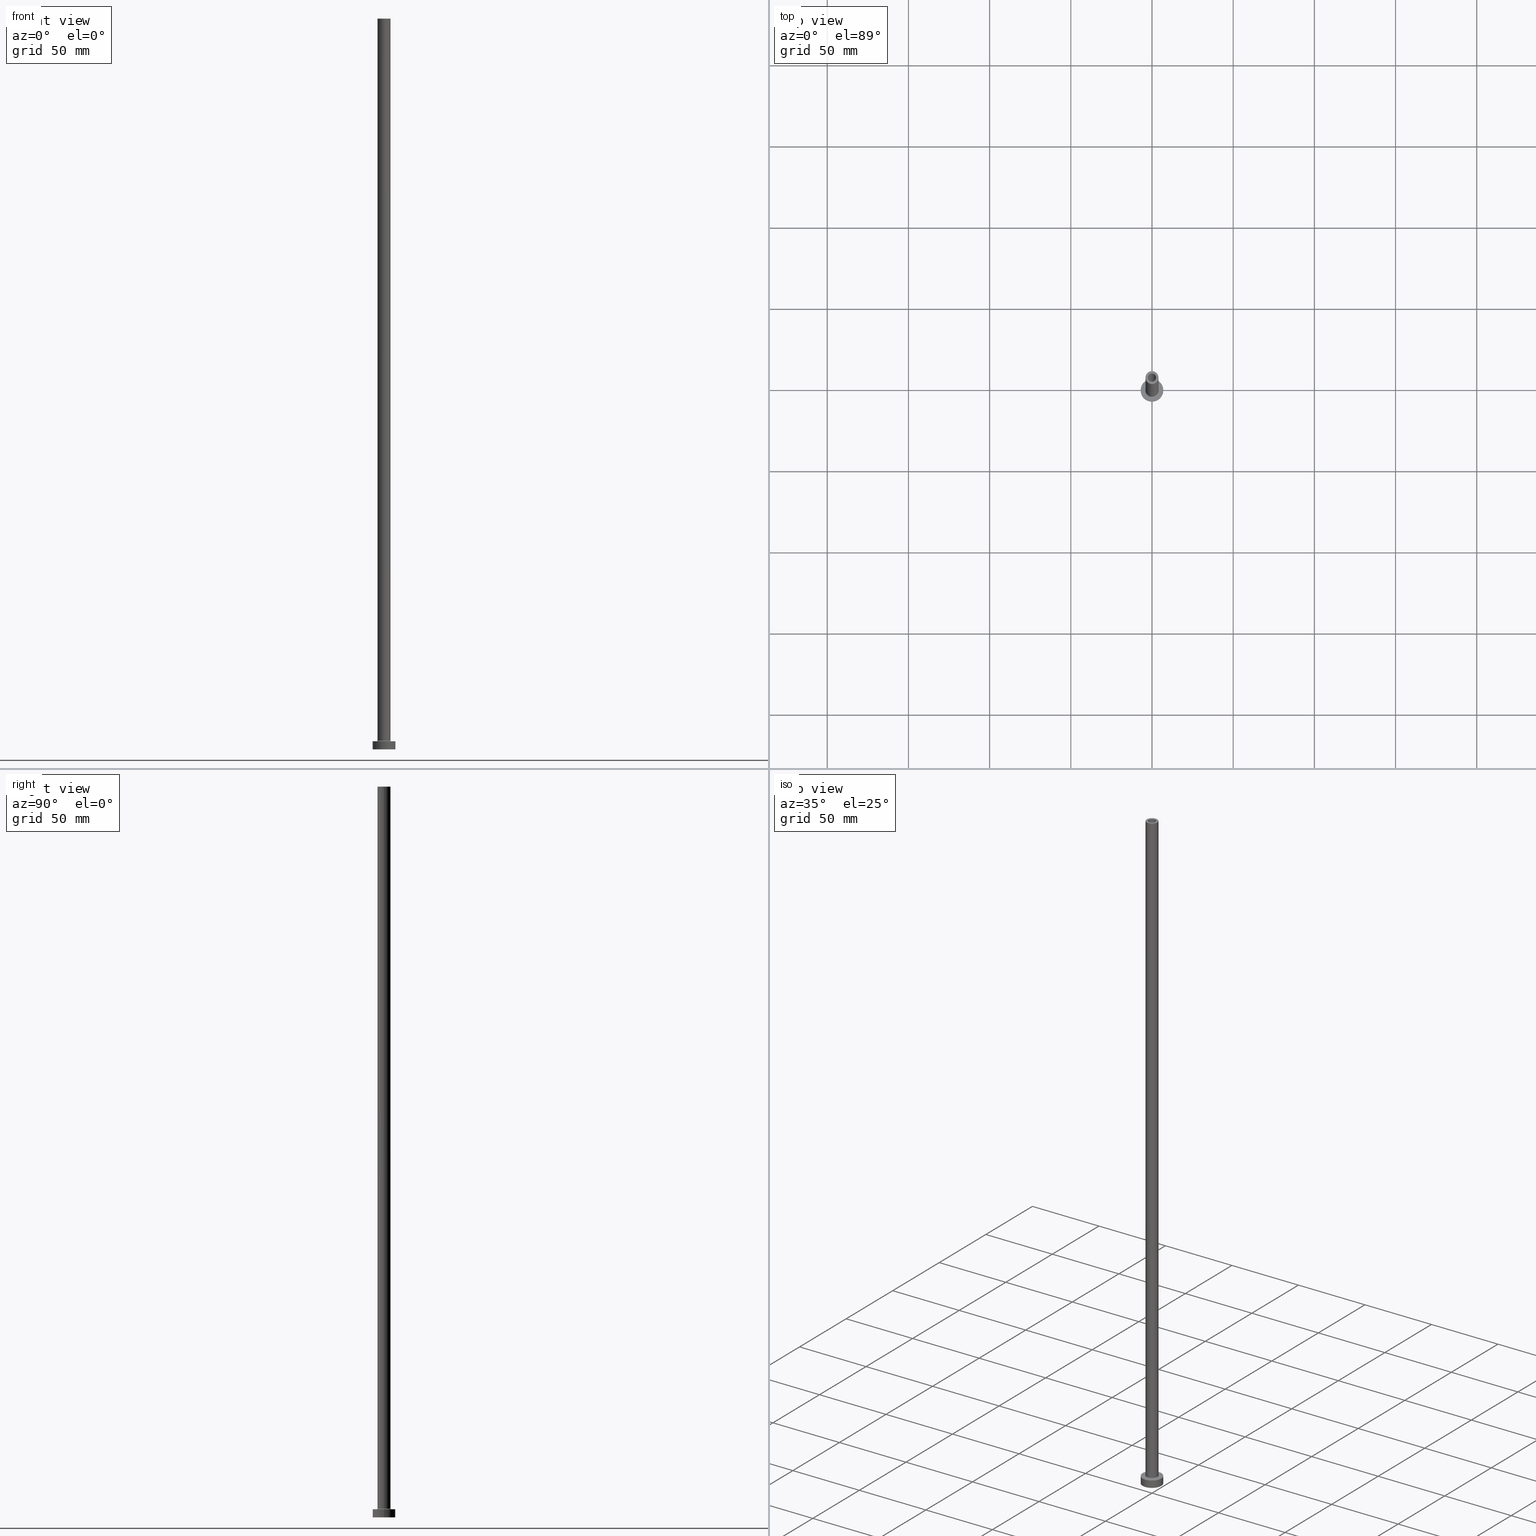
[diagram: canonical four-view strip — front | top / right | iso, engineering-drawing reading convention]
A machine part, canonical four-view strip (front | top / right | iso — engineering-drawing reading convention). The complete STEP part file that produces these views, byte-faithful:
ISO-10303-21;
HEADER;
FILE_DESCRIPTION (( 'STEP AP203' ),
    '1' );
FILE_NAME ('1b4b.STEP',
    '2023-02-13T17:09:20',
    ( '' ),
    ( '' ),
    'SwSTEP 2.0',
    'SolidWorks 2019',
    '' );
FILE_SCHEMA (( 'CONFIG_CONTROL_DESIGN' ));
ENDSEC;

DATA;
#1 = DIRECTION ( 'NONE',  ( 1.000000000000000000, 0.000000000000000000, 0.000000000000000000 ) ) ;
#2 = CIRCLE ( 'NONE', #195, 4.000000000000000000 ) ;
#3 = SECURITY_CLASSIFICATION ( '', '', #87 ) ;
#4 = APPROVAL ( #72, 'NEUR�EN�' ) ;
#5 = ORIENTED_EDGE ( 'NONE', *, *, #28, .F. ) ;
#6 = CARTESIAN_POINT ( 'NONE',  ( 0.000000000000000000, 0.000000000000000000, 450.0000000000000000 ) ) ;
#7 = ORIENTED_EDGE ( 'NONE', *, *, #192, .F. ) ;
#8 = CYLINDRICAL_SURFACE ( 'NONE', #263, 4.000000000000000000 ) ;
#9 = AXIS2_PLACEMENT_3D ( 'NONE', #368, #410, #374 ) ;
#10 = VERTEX_POINT ( 'NONE', #260 ) ;
#11 = DIRECTION ( 'NONE',  ( 0.000000000000000000, 0.000000000000000000, 1.000000000000000000 ) ) ;
#12 = EDGE_LOOP ( 'NONE', ( #43, #440, #41, #45 ) ) ;
#13 = CARTESIAN_POINT ( 'NONE',  ( 0.000000000000000000, 0.000000000000000000, 412.4953318805773961 ) ) ;
#14 = ORIENTED_EDGE ( 'NONE', *, *, #341, .T. ) ;
#15 = ORIENTED_EDGE ( 'NONE', *, *, #280, .T. ) ;
#16 = FACE_OUTER_BOUND ( 'NONE', #400, .T. ) ;
#17 = PERSON_AND_ORGANIZATION ( #135, #99 ) ;
#18 = CARTESIAN_POINT ( 'NONE',  ( 2.649999999999999911, 3.245314017740485962E-16, 0.000000000000000000 ) ) ;
#19 = DIRECTION ( 'NONE',  ( 1.000000000000000000, 0.000000000000000000, -0.000000000000000000 ) ) ;
#20 = EDGE_CURVE ( 'NONE', #362, #452, #392, .T. ) ;
#21 = DATE_AND_TIME ( #233, #158 ) ;
#22 = DIRECTION ( 'NONE',  ( 1.000000000000000000, 0.000000000000000000, 0.000000000000000000 ) ) ;
#23 = CIRCLE ( 'NONE', #166, 4.500000000000000888 ) ;
#24 = PERSON_AND_ORGANIZATION_ROLE ( 'design_supplier' ) ;
#25 = CARTESIAN_POINT ( 'NONE',  ( -2.649999999999999911, 0.000000000000000000, 412.4953318805773961 ) ) ;
#26 = AXIS2_PLACEMENT_3D ( 'NONE', #103, #384, #281 ) ;
#27 = DIRECTION ( 'NONE',  ( 1.000000000000000000, 0.000000000000000000, 0.000000000000000000 ) ) ;
#28 = EDGE_CURVE ( 'NONE', #200, #10, #23, .T. ) ;
#29 = DIRECTION ( 'NONE',  ( -1.000000000000000000, 0.000000000000000000, 0.000000000000000000 ) ) ;
#30 = PLANE ( 'NONE',  #299 ) ;
#31 = VECTOR ( 'NONE', #132, 1000.000000000000000 ) ;
#32 = CIRCLE ( 'NONE', #137, 4.000000000000000000 ) ;
#33 = DIRECTION ( 'NONE',  ( 0.000000000000000000, 0.000000000000000000, 1.000000000000000000 ) ) ;
#34 = CARTESIAN_POINT ( 'NONE',  ( -4.000000000000000000, 0.000000000000000000, 450.0000000000000000 ) ) ;
#35 = CC_DESIGN_PERSON_AND_ORGANIZATION_ASSIGNMENT ( #154, #442, ( #383 ) ) ;
#36 = FACE_OUTER_BOUND ( 'NONE', #291, .T. ) ;
#37 = CARTESIAN_POINT ( 'NONE',  ( -7.000000000000000000, 0.000000000000000000, 0.000000000000000000 ) ) ;
#38 = ORIENTED_EDGE ( 'NONE', *, *, #341, .F. ) ;
#39 = VERTEX_POINT ( 'NONE', #226 ) ;
#40 = FACE_OUTER_BOUND ( 'NONE', #224, .T. ) ;
#41 = ORIENTED_EDGE ( 'NONE', *, *, #284, .T. ) ;
#42 =( LENGTH_UNIT ( ) NAMED_UNIT ( * ) SI_UNIT ( .MILLI., .METRE. ) );
#43 = ORIENTED_EDGE ( 'NONE', *, *, #82, .F. ) ;
#44 = CIRCLE ( 'NONE', #227, 7.000000000000000000 ) ;
#45 = ORIENTED_EDGE ( 'NONE', *, *, #181, .F. ) ;
#46 = FACE_BOUND ( 'NONE', #147, .T. ) ;
#47 = DIRECTION ( 'NONE',  ( -0.000000000000000000, -0.000000000000000000, -1.000000000000000000 ) ) ;
#48 = ORIENTED_EDGE ( 'NONE', *, *, #20, .F. ) ;
#49 = CALENDAR_DATE ( 2023, 13, 2 ) ;
#50 = CARTESIAN_POINT ( 'NONE',  ( 0.000000000000000000, 0.000000000000000000, 450.0000000000000000 ) ) ;
#51 = EDGE_LOOP ( 'NONE', ( #360, #14, #425, #321 ) ) ;
#52 = DIRECTION ( 'NONE',  ( 1.000000000000000000, 0.000000000000000000, 0.000000000000000000 ) ) ;
#53 = ORIENTED_EDGE ( 'NONE', *, *, #253, .F. ) ;
#54 = DIRECTION ( 'NONE',  ( 1.000000000000000000, 0.000000000000000000, 0.000000000000000000 ) ) ;
#55 = EDGE_CURVE ( 'NONE', #146, #10, #401, .T. ) ;
#56 = DIRECTION ( 'NONE',  ( -0.000000000000000000, -0.000000000000000000, -1.000000000000000000 ) ) ;
#57 = CARTESIAN_POINT ( 'NONE',  ( 0.000000000000000000, 0.000000000000000000, 5.500000000000005329 ) ) ;
#58 = LOCAL_TIME ( 18, 9, 20.00000000000000000, #369 ) ;
#59 = CARTESIAN_POINT ( 'NONE',  ( 0.000000000000000000, 0.000000000000000000, 5.000000000000000000 ) ) ;
#60 = ADVANCED_FACE ( 'NONE', ( #122, #365 ), #326, .T. ) ;
#61 = CARTESIAN_POINT ( 'NONE',  ( 2.500000000000000000, 3.061616997868382648E-16, 450.0000000000000000 ) ) ;
#62 = DIRECTION ( 'NONE',  ( -1.000000000000000000, 0.000000000000000000, 0.000000000000000000 ) ) ;
#63 = AXIS2_PLACEMENT_3D ( 'NONE', #104, #139, #173 ) ;
#64 = DIRECTION ( 'NONE',  ( 1.000000000000000000, 0.000000000000000000, -0.000000000000000000 ) ) ;
#65 = EDGE_CURVE ( 'NONE', #318, #441, #423, .T. ) ;
#66 = CARTESIAN_POINT ( 'NONE',  ( 0.000000000000000000, 0.000000000000000000, 405.0000000000000000 ) ) ;
#67 = APPROVAL_ROLE ( '' ) ;
#68 = ORIENTED_EDGE ( 'NONE', *, *, #251, .T. ) ;
#69 = ORIENTED_EDGE ( 'NONE', *, *, #197, .T. ) ;
#70 = CIRCLE ( 'NONE', #130, 2.649999999999999911 ) ;
#71 = LOCAL_TIME ( 18, 9, 20.00000000000000000, #453 ) ;
#72 = APPROVAL_STATUS ( 'not_yet_approved' ) ;
#73 = VERTEX_POINT ( 'NONE', #448 ) ;
#74 = ORIENTED_EDGE ( 'NONE', *, *, #332, .F. ) ;
#75 = DIRECTION ( 'NONE',  ( 1.000000000000000000, 0.000000000000000000, 0.000000000000000000 ) ) ;
#76 = VERTEX_POINT ( 'NONE', #298 ) ;
#77 = ORIENTED_EDGE ( 'NONE', *, *, #322, .T. ) ;
#78 = ORIENTED_EDGE ( 'NONE', *, *, #55, .F. ) ;
#79 = FACE_OUTER_BOUND ( 'NONE', #314, .T. ) ;
#80 = VERTEX_POINT ( 'NONE', #18 ) ;
#81 = ORIENTED_EDGE ( 'NONE', *, *, #178, .T. ) ;
#82 = EDGE_CURVE ( 'NONE', #397, #39, #378, .T. ) ;
#83 = CARTESIAN_POINT ( 'NONE',  ( 0.000000000000000000, 0.000000000000000000, 5.000000000000000000 ) ) ;
#84 = CC_DESIGN_DATE_AND_TIME_ASSIGNMENT ( #162, #334, ( #3 ) ) ;
#85 = DATE_TIME_ROLE ( 'creation_date' ) ;
#86 = CARTESIAN_POINT ( 'NONE',  ( -2.649999999999999911, 0.000000000000000000, 405.0000000000000000 ) ) ;
#87 = SECURITY_CLASSIFICATION_LEVEL ( 'unclassified' ) ;
#88 = DIRECTION ( 'NONE',  ( 0.000000000000000000, 0.000000000000000000, 1.000000000000000000 ) ) ;
#89 = AXIS2_PLACEMENT_3D ( 'NONE', #296, #244, #19 ) ;
#90 = PERSON_AND_ORGANIZATION ( #135, #99 ) ;
#91 = AXIS2_PLACEMENT_3D ( 'NONE', #170, #252, #389 ) ;
#92 = CC_DESIGN_APPROVAL ( #4, ( #383 ) ) ;
#93 = DIRECTION ( 'NONE',  ( 0.000000000000000000, 0.000000000000000000, 1.000000000000000000 ) ) ;
#94 = CARTESIAN_POINT ( 'NONE',  ( 0.000000000000000000, 0.000000000000000000, 450.0000000000000000 ) ) ;
#95 = DIRECTION ( 'NONE',  ( 0.000000000000000000, 0.000000000000000000, 1.000000000000000000 ) ) ;
#96 = AXIS2_PLACEMENT_3D ( 'NONE', #259, #189, #324 ) ;
#97 = CIRCLE ( 'NONE', #338, 2.500000000000000000 ) ;
#98 = CYLINDRICAL_SURFACE ( 'NONE', #207, 2.649999999999999911 ) ;
#99 = ORGANIZATION ( 'NEUR�EN�', 'NEUR�EN�', '' ) ;
#100 = CC_DESIGN_PERSON_AND_ORGANIZATION_ASSIGNMENT ( #367, #159, ( #3 ) ) ;
#101 = CARTESIAN_POINT ( 'NONE',  ( 0.000000000000000000, 0.000000000000000000, 412.4953318805773961 ) ) ;
#102 = ADVANCED_FACE ( 'NONE', ( #455, #331 ), #203, .F. ) ;
#103 = CARTESIAN_POINT ( 'NONE',  ( 0.000000000000000000, 0.000000000000000000, 0.000000000000000000 ) ) ;
#104 = CARTESIAN_POINT ( 'NONE',  ( 0.000000000000000000, 0.000000000000000000, 0.000000000000000000 ) ) ;
#105 = DIRECTION ( 'NONE',  ( 0.000000000000000000, 0.000000000000000000, -1.000000000000000000 ) ) ;
#106 = DIRECTION ( 'NONE',  ( -0.000000000000000000, -0.000000000000000000, -1.000000000000000000 ) ) ;
#107 = ORIENTED_EDGE ( 'NONE', *, *, #284, .F. ) ;
#108 = VERTEX_POINT ( 'NONE', #165 ) ;
#109 = EDGE_CURVE ( 'NONE', #403, #39, #204, .T. ) ;
#110 = CARTESIAN_POINT ( 'NONE',  ( 0.000000000000000000, 0.000000000000000000, 450.0000000000000000 ) ) ;
#111 = DIRECTION ( 'NONE',  ( 0.000000000000000000, 0.000000000000000000, 1.000000000000000000 ) ) ;
#112 = AXIS2_PLACEMENT_3D ( 'NONE', #246, #245, #29 ) ;
#113 = EDGE_LOOP ( 'NONE', ( #445, #395, #433, #357 ) ) ;
#114 = CC_DESIGN_PERSON_AND_ORGANIZATION_ASSIGNMENT ( #17, #230, ( #250 ) ) ;
#115 = DIRECTION ( 'NONE',  ( 0.000000000000000000, 0.000000000000000000, 1.000000000000000000 ) ) ;
#116 = ORIENTED_EDGE ( 'NONE', *, *, #280, .F. ) ;
#117 = EDGE_LOOP ( 'NONE', ( #228, #68 ) ) ;
#118 = ORIENTED_EDGE ( 'NONE', *, *, #238, .F. ) ;
#119 = APPLICATION_PROTOCOL_DEFINITION ( 'international standard', 'config_control_design', 1994, #274 ) ;
#120 = VECTOR ( 'NONE', #269, 1000.000000000000000 ) ;
#121 = EDGE_CURVE ( 'NONE', #73, #191, #449, .T. ) ;
#122 = FACE_BOUND ( 'NONE', #262, .T. ) ;
#123 = VERTEX_POINT ( 'NONE', #86 ) ;
#124 = APPROVAL_DATE_TIME ( #21, #379 ) ;
#125 = DIRECTION ( 'NONE',  ( 0.000000000000000000, 0.000000000000000000, 1.000000000000000000 ) ) ;
#126 = PRODUCT_DEFINITION_SHAPE ( 'NONE', 'NONE',  #383 ) ;
#127 = EDGE_LOOP ( 'NONE', ( #394, #38 ) ) ;
#128 = CARTESIAN_POINT ( 'NONE',  ( 2.649999999999999911, 3.245314017740485962E-16, 412.4953318805773961 ) ) ;
#129 = CARTESIAN_POINT ( 'NONE',  ( 0.000000000000000000, 0.000000000000000000, 405.0000000000000000 ) ) ;
#130 = AXIS2_PLACEMENT_3D ( 'NONE', #231, #370, #52 ) ;
#131 = CIRCLE ( 'NONE', #236, 2.500000000000000000 ) ;
#132 = DIRECTION ( 'NONE',  ( 0.000000000000000000, 0.000000000000000000, -1.000000000000000000 ) ) ;
#133 = CALENDAR_DATE ( 2023, 13, 2 ) ;
#134 = CARTESIAN_POINT ( 'NONE',  ( 0.000000000000000000, 0.000000000000000000, 405.0000000000000000 ) ) ;
#135 = PERSON ( 'NEUR�EN�', 'NEUR�EN�', 'NEUR�EN�', ('NEUR�EN�'), ('NEUR�EN�'), ('NEUR�EN�') ) ;
#136 = DIRECTION ( 'NONE',  ( 0.000000000000000000, 0.000000000000000000, 1.000000000000000000 ) ) ;
#137 = AXIS2_PLACEMENT_3D ( 'NONE', #457, #348, #1 ) ;
#138 = FACE_OUTER_BOUND ( 'NONE', #285, .T. ) ;
#139 = DIRECTION ( 'NONE',  ( 0.000000000000000000, 0.000000000000000000, 1.000000000000000000 ) ) ;
#140 = ADVANCED_FACE ( 'NONE', ( #16 ), #295, .T. ) ;
#141 = DIRECTION ( 'NONE',  ( 1.000000000000000000, 0.000000000000000000, 0.000000000000000000 ) ) ;
#142 = CARTESIAN_POINT ( 'NONE',  ( 0.000000000000000000, 0.000000000000000000, 5.500000000000005329 ) ) ;
#143 = PERSON_AND_ORGANIZATION ( #135, #99 ) ;
#144 = DIRECTION ( 'NONE',  ( 0.000000000000000000, 0.000000000000000000, 1.000000000000000000 ) ) ;
#145 =( NAMED_UNIT ( * ) SI_UNIT ( $, .STERADIAN. ) SOLID_ANGLE_UNIT ( ) );
#146 = VERTEX_POINT ( 'NONE', #337 ) ;
#147 = EDGE_LOOP ( 'NONE', ( #74, #186 ) ) ;
#148 = AXIS2_PLACEMENT_3D ( 'NONE', #241, #157, #447 ) ;
#149 = DIRECTION ( 'NONE',  ( 0.000000000000000000, 0.000000000000000000, 1.000000000000000000 ) ) ;
#150 = ORIENTED_EDGE ( 'NONE', *, *, #287, .F. ) ;
#151 = APPROVAL_PERSON_ORGANIZATION ( #264, #379, #375 ) ;
#152 = ORIENTED_EDGE ( 'NONE', *, *, #121, .T. ) ;
#153 = ADVANCED_FACE ( 'NONE', ( #168 ), #408, .F. ) ;
#154 = PERSON_AND_ORGANIZATION ( #135, #99 ) ;
#155 = ORIENTED_EDGE ( 'NONE', *, *, #161, .T. ) ;
#156 = ORIENTED_EDGE ( 'NONE', *, *, #232, .T. ) ;
#157 = DIRECTION ( 'NONE',  ( -0.000000000000000000, -0.000000000000000000, -1.000000000000000000 ) ) ;
#158 = LOCAL_TIME ( 18, 9, 20.00000000000000000, #297 ) ;
#159 = PERSON_AND_ORGANIZATION_ROLE ( 'classification_officer' ) ;
#160 = CARTESIAN_POINT ( 'NONE',  ( 2.500000000000000000, 3.061616997868382648E-16, 450.0000000000000000 ) ) ;
#161 = EDGE_CURVE ( 'NONE', #347, #200, #212, .T. ) ;
#162 = DATE_AND_TIME ( #240, #346 ) ;
#163 = DIRECTION ( 'NONE',  ( 0.000000000000000000, 0.000000000000000000, 1.000000000000000000 ) ) ;
#164 = APPROVAL_STATUS ( 'not_yet_approved' ) ;
#165 = CARTESIAN_POINT ( 'NONE',  ( -2.500000000000000000, 0.000000000000000000, 450.0000000000000000 ) ) ;
#166 = AXIS2_PLACEMENT_3D ( 'NONE', #83, #399, #182 ) ;
#167 = VECTOR ( 'NONE', #171, 1000.000000000000000 ) ;
#168 = FACE_OUTER_BOUND ( 'NONE', #289, .T. ) ;
#169 = APPROVAL ( #202, 'NEUR�EN�' ) ;
#170 = CARTESIAN_POINT ( 'NONE',  ( 0.000000000000000000, 0.000000000000000000, 5.000000000000000000 ) ) ;
#171 = DIRECTION ( 'NONE',  ( -0.000000000000000000, -0.000000000000000000, -1.000000000000000000 ) ) ;
#172 = CIRCLE ( 'NONE', #91, 7.000000000000000000 ) ;
#173 = DIRECTION ( 'NONE',  ( 1.000000000000000000, 0.000000000000000000, 0.000000000000000000 ) ) ;
#174 = CIRCLE ( 'NONE', #312, 2.649999999999999911 ) ;
#175 = EDGE_LOOP ( 'NONE', ( #355, #292 ) ) ;
#176 = DIRECTION ( 'NONE',  ( 1.000000000000000000, 0.000000000000000000, 0.000000000000000000 ) ) ;
#177 = CARTESIAN_POINT ( 'NONE',  ( 0.000000000000000000, 0.000000000000000000, 0.000000000000000000 ) ) ;
#178 = EDGE_CURVE ( 'NONE', #419, #80, #199, .T. ) ;
#179 = CARTESIAN_POINT ( 'NONE',  ( 0.000000000000000000, 0.000000000000000000, 0.000000000000000000 ) ) ;
#180 = ORIENTED_EDGE ( 'NONE', *, *, #28, .T. ) ;
#181 = EDGE_CURVE ( 'NONE', #39, #403, #434, .T. ) ;
#182 = DIRECTION ( 'NONE',  ( 1.000000000000000000, 0.000000000000000000, 0.000000000000000000 ) ) ;
#183 = DIRECTION ( 'NONE',  ( 1.000000000000000000, 0.000000000000000000, -0.000000000000000000 ) ) ;
#184 = ORIENTED_EDGE ( 'NONE', *, *, #210, .T. ) ;
#185 = DIRECTION ( 'NONE',  ( 0.000000000000000000, 0.000000000000000000, 1.000000000000000000 ) ) ;
#186 = ORIENTED_EDGE ( 'NONE', *, *, #308, .F. ) ;
#187 = ORIENTED_EDGE ( 'NONE', *, *, #416, .T. ) ;
#188 = AXIS2_PLACEMENT_3D ( 'NONE', #13, #354, #436 ) ;
#189 = DIRECTION ( 'NONE',  ( 0.000000000000000000, -1.000000000000000000, 0.000000000000000000 ) ) ;
#190 = DATE_AND_TIME ( #49, #58 ) ;
#191 = VERTEX_POINT ( 'NONE', #407 ) ;
#192 = EDGE_CURVE ( 'NONE', #397, #108, #97, .T. ) ;
#193 = DIRECTION ( 'NONE',  ( 1.000000000000000000, 0.000000000000000000, 0.000000000000000000 ) ) ;
#194 = PRODUCT ( '1b4b', '1b4b', '', ( #257 ) ) ;
#195 = AXIS2_PLACEMENT_3D ( 'NONE', #142, #209, #459 ) ;
#196 = ORIENTED_EDGE ( 'NONE', *, *, #55, .T. ) ;
#197 = EDGE_CURVE ( 'NONE', #191, #452, #235, .T. ) ;
#198 = CARTESIAN_POINT ( 'NONE',  ( 0.000000000000000000, 0.000000000000000000, 5.000000000000000000 ) ) ;
#199 = LINE ( 'NONE', #128, #371 ) ;
#200 = VERTEX_POINT ( 'NONE', #271 ) ;
#201 = ORIENTED_EDGE ( 'NONE', *, *, #20, .T. ) ;
#202 = APPROVAL_STATUS ( 'not_yet_approved' ) ;
#203 = PLANE ( 'NONE',  #89 ) ;
#204 = CIRCLE ( 'NONE', #391, 2.500000000000000000 ) ;
#205 = CC_DESIGN_PERSON_AND_ORGANIZATION_ASSIGNMENT ( #143, #225, ( #194 ) ) ;
#206 = CIRCLE ( 'NONE', #63, 7.000000000000000000 ) ;
#207 = AXIS2_PLACEMENT_3D ( 'NONE', #101, #214, #349 ) ;
#208 = LINE ( 'NONE', #25, #31 ) ;
#209 = DIRECTION ( 'NONE',  ( 0.000000000000000000, 0.000000000000000000, 1.000000000000000000 ) ) ;
#210 = EDGE_CURVE ( 'NONE', #123, #419, #70, .T. ) ;
#211 = DIRECTION ( 'NONE',  ( 1.000000000000000000, 0.000000000000000000, 0.000000000000000000 ) ) ;
#212 = CIRCLE ( 'NONE', #9, 0.5000000000000004441 ) ;
#213 = DIRECTION ( 'NONE',  ( 0.000000000000000000, 0.000000000000000000, -1.000000000000000000 ) ) ;
#214 = DIRECTION ( 'NONE',  ( 0.000000000000000000, 0.000000000000000000, -1.000000000000000000 ) ) ;
#215 = DIRECTION ( 'NONE',  ( 1.000000000000000000, 0.000000000000000000, 0.000000000000000000 ) ) ;
#216 = ORIENTED_EDGE ( 'NONE', *, *, #265, .T. ) ;
#217 = FACE_OUTER_BOUND ( 'NONE', #113, .T. ) ;
#218 = CIRCLE ( 'NONE', #329, 4.500000000000000888 ) ;
#219 = CARTESIAN_POINT ( 'NONE',  ( -7.000000000000000000, 0.000000000000000000, 5.000000000000000000 ) ) ;
#220 = VECTOR ( 'NONE', #388, 1000.000000000000000 ) ;
#221 = CARTESIAN_POINT ( 'NONE',  ( 2.649999999999999911, 3.245314017740485962E-16, 405.0000000000000000 ) ) ;
#222 = ORIENTED_EDGE ( 'NONE', *, *, #363, .F. ) ;
#223 = APPLICATION_PROTOCOL_DEFINITION ( 'international standard', 'config_control_design', 1994, #350 ) ;
#224 = EDGE_LOOP ( 'NONE', ( #432, #150, #196, #5 ) ) ;
#225 = PERSON_AND_ORGANIZATION_ROLE ( 'design_owner' ) ;
#226 = CARTESIAN_POINT ( 'NONE',  ( 2.500000000000000000, 3.061616997868382648E-16, 405.0000000000000000 ) ) ;
#227 = AXIS2_PLACEMENT_3D ( 'NONE', #381, #309, #27 ) ;
#228 = ORIENTED_EDGE ( 'NONE', *, *, #65, .T. ) ;
#229 = ORIENTED_EDGE ( 'NONE', *, *, #181, .T. ) ;
#230 = PERSON_AND_ORGANIZATION_ROLE ( 'creator' ) ;
#231 = CARTESIAN_POINT ( 'NONE',  ( 0.000000000000000000, 0.000000000000000000, 405.0000000000000000 ) ) ;
#232 = EDGE_CURVE ( 'NONE', #10, #200, #218, .T. ) ;
#233 = CALENDAR_DATE ( 2023, 13, 2 ) ;
#234 = CARTESIAN_POINT ( 'NONE',  ( 0.000000000000000000, 0.000000000000000000, 0.000000000000000000 ) ) ;
#235 = CIRCLE ( 'NONE', #361, 7.000000000000000000 ) ;
#236 = AXIS2_PLACEMENT_3D ( 'NONE', #359, #11, #317 ) ;
#237 = AXIS2_PLACEMENT_3D ( 'NONE', #94, #56, #294 ) ;
#238 = EDGE_CURVE ( 'NONE', #123, #76, #208, .T. ) ;
#239 = DIRECTION ( 'NONE',  ( 1.000000000000000000, 0.000000000000000000, 0.000000000000000000 ) ) ;
#240 = CALENDAR_DATE ( 2023, 13, 2 ) ;
#241 = CARTESIAN_POINT ( 'NONE',  ( 0.000000000000000000, 0.000000000000000000, 5.000000000000000000 ) ) ;
#242 = ADVANCED_FACE ( 'NONE', ( #414 ), #415, .T. ) ;
#243 = ADVANCED_BREP_SHAPE_REPRESENTATION ( '1b4b', ( #390, #380 ), #275 ) ;
#244 = DIRECTION ( 'NONE',  ( 0.000000000000000000, 0.000000000000000000, 1.000000000000000000 ) ) ;
#245 = DIRECTION ( 'NONE',  ( -0.000000000000000000, -0.000000000000000000, -1.000000000000000000 ) ) ;
#246 = CARTESIAN_POINT ( 'NONE',  ( 0.000000000000000000, 0.000000000000000000, 5.000000000000000000 ) ) ;
#247 = LINE ( 'NONE', #34, #167 ) ;
#248 = CIRCLE ( 'NONE', #402, 4.000000000000000000 ) ;
#249 = FACE_OUTER_BOUND ( 'NONE', #12, .T. ) ;
#250 = PRODUCT_DEFINITION_FORMATION_WITH_SPECIFIED_SOURCE ( 'LIBOVOLN�', '', #194, .NOT_KNOWN. ) ;
#251 = EDGE_CURVE ( 'NONE', #441, #318, #248, .T. ) ;
#252 = DIRECTION ( 'NONE',  ( 0.000000000000000000, 0.000000000000000000, 1.000000000000000000 ) ) ;
#253 = EDGE_CURVE ( 'NONE', #73, #362, #44, .T. ) ;
#254 = DIRECTION ( 'NONE',  ( -1.000000000000000000, 0.000000000000000000, 0.000000000000000000 ) ) ;
#255 = ORIENTED_EDGE ( 'NONE', *, *, #121, .F. ) ;
#256 = DIRECTION ( 'NONE',  ( 1.000000000000000000, 0.000000000000000000, 0.000000000000000000 ) ) ;
#257 = MECHANICAL_CONTEXT ( 'NONE', #350, 'mechanical' ) ;
#258 = ORIENTED_EDGE ( 'NONE', *, *, #82, .T. ) ;
#259 = CARTESIAN_POINT ( 'NONE',  ( 4.500000000000000888, 0.000000000000000000, 5.500000000000005329 ) ) ;
#260 = CARTESIAN_POINT ( 'NONE',  ( 4.500000000000000888, 0.000000000000000000, 5.000000000000002665 ) ) ;
#261 = CARTESIAN_POINT ( 'NONE',  ( 4.000000000000000000, 4.898587196589412829E-16, 450.0000000000000000 ) ) ;
#262 = EDGE_LOOP ( 'NONE', ( #313, #7 ) ) ;
#263 = AXIS2_PLACEMENT_3D ( 'NONE', #110, #106, #254 ) ;
#264 = PERSON_AND_ORGANIZATION ( #135, #99 ) ;
#265 = EDGE_CURVE ( 'NONE', #347, #146, #32, .T. ) ;
#266 = DIRECTION ( 'NONE',  ( 0.000000000000000000, 0.000000000000000000, -1.000000000000000000 ) ) ;
#267 = ADVANCED_FACE ( 'NONE', ( #344, #276 ), #30, .T. ) ;
#268 = CARTESIAN_POINT ( 'NONE',  ( 7.000000000000000000, 8.572527594031473190E-16, 5.000000000000000000 ) ) ;
#269 = DIRECTION ( 'NONE',  ( -0.000000000000000000, -0.000000000000000000, -1.000000000000000000 ) ) ;
#270 = DATE_AND_TIME ( #133, #71 ) ;
#271 = CARTESIAN_POINT ( 'NONE',  ( -4.500000000000000888, 5.510910596163088569E-16, 5.000000000000002665 ) ) ;
#272 = AXIS2_PLACEMENT_3D ( 'NONE', #6, #111, #256 ) ;
#273 = DIRECTION ( 'NONE',  ( -1.000000000000000000, 0.000000000000000000, 0.000000000000000000 ) ) ;
#274 = APPLICATION_CONTEXT ( 'configuration controlled 3d designs of mechanical parts and assemblies' ) ;
#275 =( GEOMETRIC_REPRESENTATION_CONTEXT ( 3 ) GLOBAL_UNCERTAINTY_ASSIGNED_CONTEXT ( ( #377 ) ) GLOBAL_UNIT_ASSIGNED_CONTEXT ( ( #42, #311, #145 ) ) REPRESENTATION_CONTEXT ( 'NONE', 'WORKASPACE' ) );
#276 = FACE_OUTER_BOUND ( 'NONE', #175, .T. ) ;
#277 = CYLINDRICAL_SURFACE ( 'NONE', #112, 7.000000000000000000 ) ;
#278 = CARTESIAN_POINT ( 'NONE',  ( -4.000000000000000000, 0.000000000000000000, 450.0000000000000000 ) ) ;
#279 = VECTOR ( 'NONE', #47, 1000.000000000000000 ) ;
#280 = EDGE_CURVE ( 'NONE', #452, #191, #206, .T. ) ;
#281 = DIRECTION ( 'NONE',  ( 1.000000000000000000, 0.000000000000000000, 0.000000000000000000 ) ) ;
#282 = CC_DESIGN_APPROVAL ( #379, ( #3 ) ) ;
#283 = DIRECTION ( 'NONE',  ( 1.000000000000000000, 0.000000000000000000, -0.000000000000000000 ) ) ;
#284 = EDGE_CURVE ( 'NONE', #108, #403, #302, .T. ) ;
#285 = EDGE_LOOP ( 'NONE', ( #187, #258, #366, #107 ) ) ;
#286 = EDGE_LOOP ( 'NONE', ( #156, #180 ) ) ;
#287 = EDGE_CURVE ( 'NONE', #146, #347, #2, .T. ) ;
#288 = CARTESIAN_POINT ( 'NONE',  ( 0.000000000000000000, 0.000000000000000000, 0.000000000000000000 ) ) ;
#289 = EDGE_LOOP ( 'NONE', ( #385, #155, #310, #78 ) ) ;
#290 = CALENDAR_DATE ( 2023, 13, 2 ) ;
#291 = EDGE_LOOP ( 'NONE', ( #184, #81, #429, #118 ) ) ;
#292 = ORIENTED_EDGE ( 'NONE', *, *, #253, .T. ) ;
#293 = PRODUCT_RELATED_PRODUCT_CATEGORY ( 'detail', '', ( #194 ) ) ;
#294 = DIRECTION ( 'NONE',  ( -1.000000000000000000, 0.000000000000000000, 0.000000000000000000 ) ) ;
#295 = CYLINDRICAL_SURFACE ( 'NONE', #148, 7.000000000000000000 ) ;
#296 = CARTESIAN_POINT ( 'NONE',  ( 0.000000000000000000, 0.000000000000000000, 405.0000000000000000 ) ) ;
#297 = COORDINATED_UNIVERSAL_TIME_OFFSET ( 1, 0, .AHEAD. ) ;
#298 = CARTESIAN_POINT ( 'NONE',  ( -2.649999999999999911, 0.000000000000000000, 0.000000000000000000 ) ) ;
#299 = AXIS2_PLACEMENT_3D ( 'NONE', #59, #136, #64 ) ;
#300 = TOROIDAL_SURFACE ( 'NONE', #387, 4.500000000000000888, 0.5000000000000000000 ) ;
#301 = DIRECTION ( 'NONE',  ( 1.000000000000000000, 0.000000000000000000, 0.000000000000000000 ) ) ;
#302 = LINE ( 'NONE', #306, #418 ) ;
#303 = CARTESIAN_POINT ( 'NONE',  ( 0.000000000000000000, 0.000000000000000000, 450.0000000000000000 ) ) ;
#304 = ADVANCED_FACE ( 'NONE', ( #342 ), #277, .T. ) ;
#305 = AXIS2_PLACEMENT_3D ( 'NONE', #177, #422, #211 ) ;
#306 = CARTESIAN_POINT ( 'NONE',  ( -2.500000000000000000, 0.000000000000000000, 450.0000000000000000 ) ) ;
#307 = CARTESIAN_POINT ( 'NONE',  ( 0.000000000000000000, 0.000000000000000000, 450.0000000000000000 ) ) ;
#308 = EDGE_CURVE ( 'NONE', #80, #76, #345, .T. ) ;
#309 = DIRECTION ( 'NONE',  ( 0.000000000000000000, 0.000000000000000000, 1.000000000000000000 ) ) ;
#310 = ORIENTED_EDGE ( 'NONE', *, *, #232, .F. ) ;
#311 =( NAMED_UNIT ( * ) PLANE_ANGLE_UNIT ( ) SI_UNIT ( $, .RADIAN. ) );
#312 = AXIS2_PLACEMENT_3D ( 'NONE', #66, #33, #176 ) ;
#313 = ORIENTED_EDGE ( 'NONE', *, *, #416, .F. ) ;
#314 = EDGE_LOOP ( 'NONE', ( #116, #460 ) ) ;
#315 = EDGE_CURVE ( 'NONE', #362, #73, #172, .T. ) ;
#316 = CARTESIAN_POINT ( 'NONE',  ( 0.000000000000000000, 0.000000000000000000, 450.0000000000000000 ) ) ;
#317 = DIRECTION ( 'NONE',  ( 1.000000000000000000, 0.000000000000000000, 0.000000000000000000 ) ) ;
#318 = VERTEX_POINT ( 'NONE', #278 ) ;
#319 = EDGE_LOOP ( 'NONE', ( #352, #229 ) ) ;
#320 = COORDINATED_UNIVERSAL_TIME_OFFSET ( 1, 0, .AHEAD. ) ;
#321 = ORIENTED_EDGE ( 'NONE', *, *, #332, .T. ) ;
#322 = EDGE_CURVE ( 'NONE', #318, #347, #247, .T. ) ;
#323 = APPROVAL_DATE_TIME ( #398, #4 ) ;
#324 = DIRECTION ( 'NONE',  ( 0.000000000000000000, 0.000000000000000000, -1.000000000000000000 ) ) ;
#325 = CC_DESIGN_DATE_AND_TIME_ASSIGNMENT ( #190, #85, ( #383 ) ) ;
#326 = PLANE ( 'NONE',  #336 ) ;
#327 = VECTOR ( 'NONE', #328, 1000.000000000000000 ) ;
#328 = DIRECTION ( 'NONE',  ( 0.000000000000000000, 0.000000000000000000, -1.000000000000000000 ) ) ;
#329 = AXIS2_PLACEMENT_3D ( 'NONE', #198, #335, #22 ) ;
#330 = CC_DESIGN_APPROVAL ( #169, ( #250 ) ) ;
#331 = FACE_OUTER_BOUND ( 'NONE', #127, .T. ) ;
#332 = EDGE_CURVE ( 'NONE', #76, #80, #426, .T. ) ;
#333 = EDGE_LOOP ( 'NONE', ( #53, #152, #69, #48 ) ) ;
#334 = DATE_TIME_ROLE ( 'classification_date' ) ;
#335 = DIRECTION ( 'NONE',  ( -0.000000000000000000, -0.000000000000000000, -1.000000000000000000 ) ) ;
#336 = AXIS2_PLACEMENT_3D ( 'NONE', #316, #144, #283 ) ;
#337 = CARTESIAN_POINT ( 'NONE',  ( 4.000000000000000000, 4.898587196589412829E-16, 5.500000000000005329 ) ) ;
#338 = AXIS2_PLACEMENT_3D ( 'NONE', #50, #88, #301 ) ;
#339 = ADVANCED_FACE ( 'NONE', ( #249 ), #427, .F. ) ;
#340 = CARTESIAN_POINT ( 'NONE',  ( -4.000000000000000000, 0.000000000000000000, 5.500000000000005329 ) ) ;
#341 = EDGE_CURVE ( 'NONE', #419, #123, #174, .T. ) ;
#342 = FACE_OUTER_BOUND ( 'NONE', #333, .T. ) ;
#343 = AXIS2_PLACEMENT_3D ( 'NONE', #57, #93, #239 ) ;
#344 = FACE_BOUND ( 'NONE', #286, .T. ) ;
#345 = CIRCLE ( 'NONE', #305, 2.649999999999999911 ) ;
#346 = LOCAL_TIME ( 18, 9, 20.00000000000000000, #409 ) ;
#347 = VERTEX_POINT ( 'NONE', #340 ) ;
#348 = DIRECTION ( 'NONE',  ( 0.000000000000000000, 0.000000000000000000, 1.000000000000000000 ) ) ;
#349 = DIRECTION ( 'NONE',  ( -1.000000000000000000, 0.000000000000000000, 0.000000000000000000 ) ) ;
#350 = APPLICATION_CONTEXT ( 'configuration controlled 3d designs of mechanical parts and assemblies' ) ;
#351 = CYLINDRICAL_SURFACE ( 'NONE', #188, 2.649999999999999911 ) ;
#352 = ORIENTED_EDGE ( 'NONE', *, *, #109, .T. ) ;
#353 = ADVANCED_FACE ( 'NONE', ( #138 ), #456, .F. ) ;
#354 = DIRECTION ( 'NONE',  ( 0.000000000000000000, 0.000000000000000000, -1.000000000000000000 ) ) ;
#355 = ORIENTED_EDGE ( 'NONE', *, *, #315, .T. ) ;
#356 = PERSON_AND_ORGANIZATION ( #135, #99 ) ;
#357 = ORIENTED_EDGE ( 'NONE', *, *, #322, .F. ) ;
#358 = CLOSED_SHELL ( 'NONE', ( #353, #430, #153, #413, #304, #140, #267, #421, #242, #60, #454, #396, #102, #339 ) ) ;
#359 = CARTESIAN_POINT ( 'NONE',  ( 0.000000000000000000, 0.000000000000000000, 450.0000000000000000 ) ) ;
#360 = ORIENTED_EDGE ( 'NONE', *, *, #178, .F. ) ;
#361 = AXIS2_PLACEMENT_3D ( 'NONE', #234, #95, #193 ) ;
#362 = VERTEX_POINT ( 'NONE', #424 ) ;
#363 = EDGE_CURVE ( 'NONE', #441, #146, #417, .T. ) ;
#364 = APPROVAL_ROLE ( '' ) ;
#365 = FACE_OUTER_BOUND ( 'NONE', #117, .T. ) ;
#366 = ORIENTED_EDGE ( 'NONE', *, *, #109, .F. ) ;
#367 = PERSON_AND_ORGANIZATION ( #135, #99 ) ;
#368 = CARTESIAN_POINT ( 'NONE',  ( -4.500000000000000888, 5.510910596163089556E-16, 5.500000000000005329 ) ) ;
#369 = COORDINATED_UNIVERSAL_TIME_OFFSET ( 1, 0, .AHEAD. ) ;
#370 = DIRECTION ( 'NONE',  ( 0.000000000000000000, 0.000000000000000000, 1.000000000000000000 ) ) ;
#371 = VECTOR ( 'NONE', #266, 1000.000000000000000 ) ;
#372 = LOCAL_TIME ( 18, 9, 20.00000000000000000, #320 ) ;
#373 = SHAPE_DEFINITION_REPRESENTATION ( #126, #243 ) ;
#374 = DIRECTION ( 'NONE',  ( -1.000000000000000000, 1.224646799147351482E-16, 0.000000000000000000 ) ) ;
#375 = APPROVAL_ROLE ( '' ) ;
#376 = DIRECTION ( 'NONE',  ( 0.000000000000000000, 0.000000000000000000, 1.000000000000000000 ) ) ;
#377 = UNCERTAINTY_MEASURE_WITH_UNIT (LENGTH_MEASURE( 1.000000000000000082E-05 ), #42, 'distance_accuracy_value', 'NONE');
#378 = LINE ( 'NONE', #160, #327 ) ;
#379 = APPROVAL ( #164, 'NEUR�EN�' ) ;
#380 = AXIS2_PLACEMENT_3D ( 'NONE', #179, #185, #75 ) ;
#381 = CARTESIAN_POINT ( 'NONE',  ( 0.000000000000000000, 0.000000000000000000, 5.000000000000000000 ) ) ;
#382 = FACE_OUTER_BOUND ( 'NONE', #51, .T. ) ;
#383 = PRODUCT_DEFINITION ( 'NEZN�M�', '', #250, #386 ) ;
#384 = DIRECTION ( 'NONE',  ( -0.000000000000000000, -0.000000000000000000, -1.000000000000000000 ) ) ;
#385 = ORIENTED_EDGE ( 'NONE', *, *, #265, .F. ) ;
#386 = DESIGN_CONTEXT ( 'detailed design', #274, 'design' ) ;
#387 = AXIS2_PLACEMENT_3D ( 'NONE', #431, #115, #215 ) ;
#388 = DIRECTION ( 'NONE',  ( -0.000000000000000000, -0.000000000000000000, -1.000000000000000000 ) ) ;
#389 = DIRECTION ( 'NONE',  ( 1.000000000000000000, 0.000000000000000000, 0.000000000000000000 ) ) ;
#390 = MANIFOLD_SOLID_BREP ( 'Odebrat vysunut�m4', #358 ) ;
#391 = AXIS2_PLACEMENT_3D ( 'NONE', #129, #163, #406 ) ;
#392 = LINE ( 'NONE', #219, #279 ) ;
#393 = APPROVAL_PERSON_ORGANIZATION ( #90, #169, #364 ) ;
#394 = ORIENTED_EDGE ( 'NONE', *, *, #210, .F. ) ;
#395 = ORIENTED_EDGE ( 'NONE', *, *, #363, .T. ) ;
#396 = ADVANCED_FACE ( 'NONE', ( #382 ), #98, .F. ) ;
#397 = VERTEX_POINT ( 'NONE', #61 ) ;
#398 = DATE_AND_TIME ( #290, #372 ) ;
#399 = DIRECTION ( 'NONE',  ( -0.000000000000000000, -0.000000000000000000, -1.000000000000000000 ) ) ;
#400 = EDGE_LOOP ( 'NONE', ( #255, #437, #201, #15 ) ) ;
#401 = CIRCLE ( 'NONE', #96, 0.5000000000000004441 ) ;
#402 = AXIS2_PLACEMENT_3D ( 'NONE', #446, #125, #141 ) ;
#403 = VERTEX_POINT ( 'NONE', #439 ) ;
#404 = APPROVAL_PERSON_ORGANIZATION ( #356, #4, #67 ) ;
#405 = APPROVAL_DATE_TIME ( #270, #169 ) ;
#406 = DIRECTION ( 'NONE',  ( 1.000000000000000000, 0.000000000000000000, 0.000000000000000000 ) ) ;
#407 = CARTESIAN_POINT ( 'NONE',  ( 7.000000000000000000, 8.572527594031473190E-16, 0.000000000000000000 ) ) ;
#408 = TOROIDAL_SURFACE ( 'NONE', #343, 4.500000000000000888, 0.5000000000000000000 ) ;
#409 = COORDINATED_UNIVERSAL_TIME_OFFSET ( 1, 0, .AHEAD. ) ;
#410 = DIRECTION ( 'NONE',  ( 1.224646799147353207E-16, 1.000000000000000000, -0.000000000000000000 ) ) ;
#411 = ORIENTED_EDGE ( 'NONE', *, *, #65, .F. ) ;
#412 = CC_DESIGN_SECURITY_CLASSIFICATION ( #3, ( #250 ) ) ;
#413 = ADVANCED_FACE ( 'NONE', ( #217 ), #8, .T. ) ;
#414 = FACE_OUTER_BOUND ( 'NONE', #443, .T. ) ;
#415 = CYLINDRICAL_SURFACE ( 'NONE', #237, 4.000000000000000000 ) ;
#416 = EDGE_CURVE ( 'NONE', #108, #397, #131, .T. ) ;
#417 = LINE ( 'NONE', #420, #220 ) ;
#418 = VECTOR ( 'NONE', #213, 1000.000000000000000 ) ;
#419 = VERTEX_POINT ( 'NONE', #221 ) ;
#420 = CARTESIAN_POINT ( 'NONE',  ( 4.000000000000000000, 4.898587196589412829E-16, 450.0000000000000000 ) ) ;
#421 = ADVANCED_FACE ( 'NONE', ( #46, #79 ), #428, .F. ) ;
#422 = DIRECTION ( 'NONE',  ( -0.000000000000000000, -0.000000000000000000, -1.000000000000000000 ) ) ;
#423 = CIRCLE ( 'NONE', #272, 4.000000000000000000 ) ;
#424 = CARTESIAN_POINT ( 'NONE',  ( -7.000000000000000000, 0.000000000000000000, 5.000000000000000000 ) ) ;
#425 = ORIENTED_EDGE ( 'NONE', *, *, #238, .T. ) ;
#426 = CIRCLE ( 'NONE', #26, 2.649999999999999911 ) ;
#427 = CYLINDRICAL_SURFACE ( 'NONE', #435, 2.500000000000000000 ) ;
#428 = PLANE ( 'NONE',  #451 ) ;
#429 = ORIENTED_EDGE ( 'NONE', *, *, #308, .T. ) ;
#430 = ADVANCED_FACE ( 'NONE', ( #36 ), #351, .F. ) ;
#431 = CARTESIAN_POINT ( 'NONE',  ( 0.000000000000000000, 0.000000000000000000, 5.500000000000005329 ) ) ;
#432 = ORIENTED_EDGE ( 'NONE', *, *, #161, .F. ) ;
#433 = ORIENTED_EDGE ( 'NONE', *, *, #287, .T. ) ;
#434 = CIRCLE ( 'NONE', #450, 2.500000000000000000 ) ;
#435 = AXIS2_PLACEMENT_3D ( 'NONE', #303, #105, #62 ) ;
#436 = DIRECTION ( 'NONE',  ( -1.000000000000000000, 0.000000000000000000, 0.000000000000000000 ) ) ;
#437 = ORIENTED_EDGE ( 'NONE', *, *, #315, .F. ) ;
#438 = CC_DESIGN_PERSON_AND_ORGANIZATION_ASSIGNMENT ( #444, #24, ( #250 ) ) ;
#439 = CARTESIAN_POINT ( 'NONE',  ( -2.500000000000000000, 0.000000000000000000, 405.0000000000000000 ) ) ;
#440 = ORIENTED_EDGE ( 'NONE', *, *, #192, .T. ) ;
#441 = VERTEX_POINT ( 'NONE', #261 ) ;
#442 = PERSON_AND_ORGANIZATION_ROLE ( 'creator' ) ;
#443 = EDGE_LOOP ( 'NONE', ( #222, #411, #77, #216 ) ) ;
#444 = PERSON_AND_ORGANIZATION ( #135, #99 ) ;
#445 = ORIENTED_EDGE ( 'NONE', *, *, #251, .F. ) ;
#446 = CARTESIAN_POINT ( 'NONE',  ( 0.000000000000000000, 0.000000000000000000, 450.0000000000000000 ) ) ;
#447 = DIRECTION ( 'NONE',  ( -1.000000000000000000, 0.000000000000000000, 0.000000000000000000 ) ) ;
#448 = CARTESIAN_POINT ( 'NONE',  ( 7.000000000000000000, 8.572527594031473190E-16, 5.000000000000000000 ) ) ;
#449 = LINE ( 'NONE', #268, #120 ) ;
#450 = AXIS2_PLACEMENT_3D ( 'NONE', #134, #376, #54 ) ;
#451 = AXIS2_PLACEMENT_3D ( 'NONE', #288, #149, #183 ) ;
#452 = VERTEX_POINT ( 'NONE', #37 ) ;
#453 = COORDINATED_UNIVERSAL_TIME_OFFSET ( 1, 0, .AHEAD. ) ;
#454 = ADVANCED_FACE ( 'NONE', ( #40 ), #300, .F. ) ;
#455 = FACE_BOUND ( 'NONE', #319, .T. ) ;
#456 = CYLINDRICAL_SURFACE ( 'NONE', #458, 2.500000000000000000 ) ;
#457 = CARTESIAN_POINT ( 'NONE',  ( 0.000000000000000000, 0.000000000000000000, 5.500000000000005329 ) ) ;
#458 = AXIS2_PLACEMENT_3D ( 'NONE', #307, #461, #273 ) ;
#459 = DIRECTION ( 'NONE',  ( 1.000000000000000000, 0.000000000000000000, 0.000000000000000000 ) ) ;
#460 = ORIENTED_EDGE ( 'NONE', *, *, #197, .F. ) ;
#461 = DIRECTION ( 'NONE',  ( 0.000000000000000000, 0.000000000000000000, -1.000000000000000000 ) ) ;
ENDSEC;
END-ISO-10303-21;
